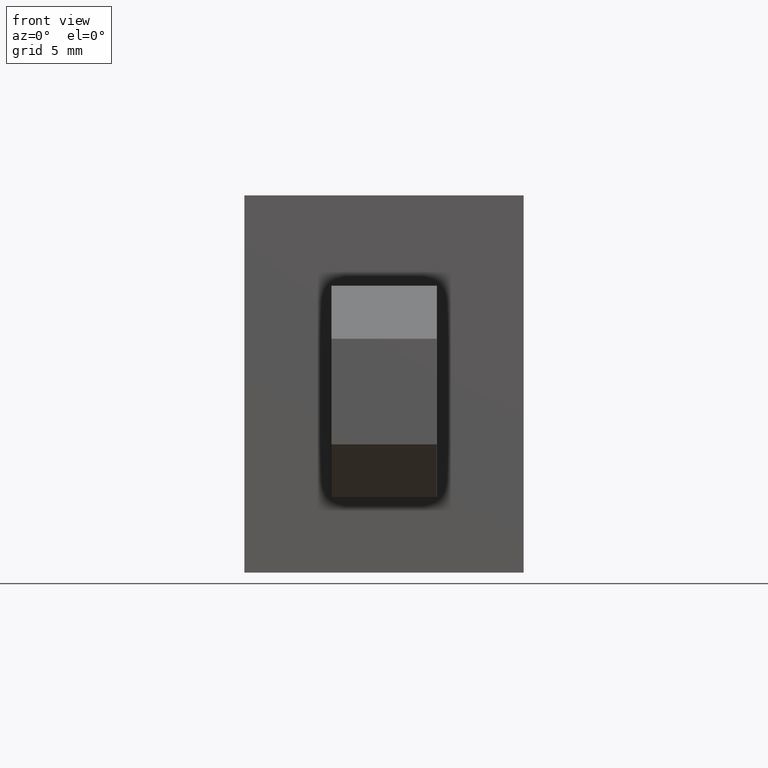
[diagram: clean part render]
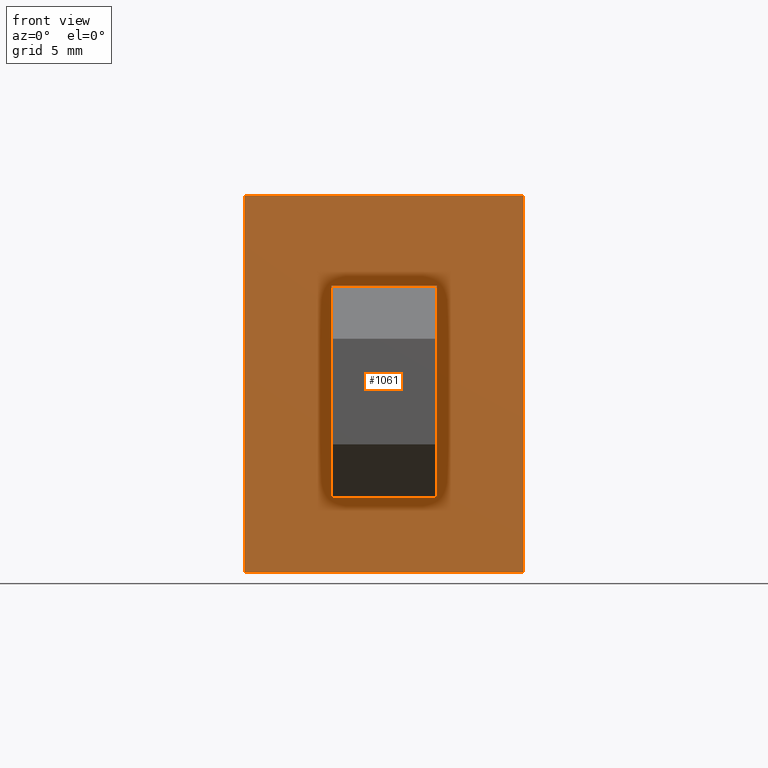
[diagram: same view with one face highlighted and labeled with its STEP entity id]
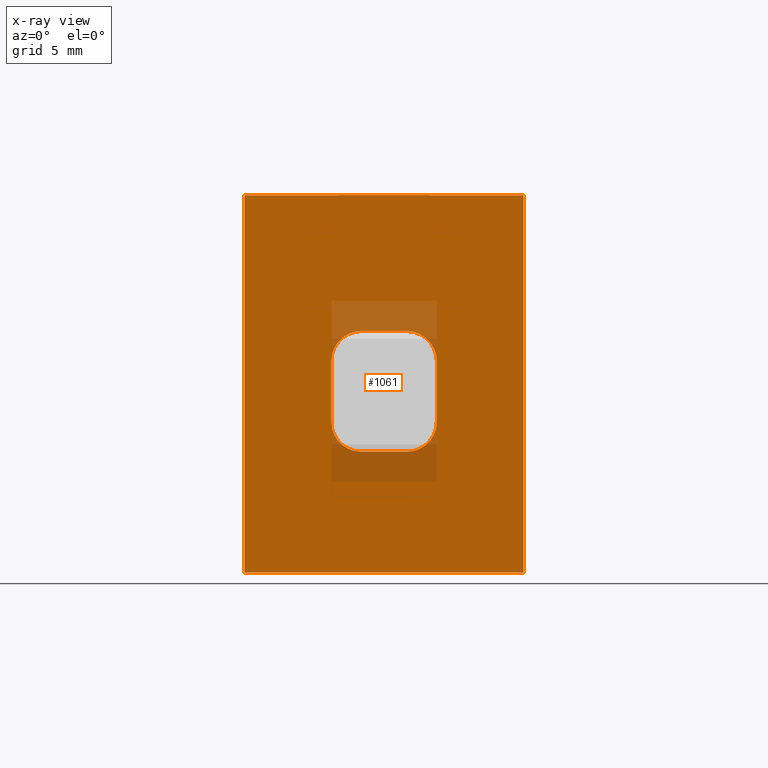
[diagram: x-ray of the same camera — body ghosted, the highlighted face saturated]
A machine part, front view. The second image highlights one B-rep face of the part: STEP entity #1061.
The next image is the same camera in x-ray: the body ghosted, the highlighted face saturated — about 8% of this face is hidden behind the body in this view.
In plain terms, the highlighted planar face has unit normal (0, 1, 0).
Its self-contained STEP definition (entity closure, byte-faithful):
#43=LINE('',#1514,#163);
#51=LINE('',#1531,#171);
#54=LINE('',#1535,#174);
#61=LINE('',#1557,#181);
#124=LINE('',#1701,#244);
#127=LINE('',#1712,#247);
#133=LINE('',#1727,#253);
#134=LINE('',#1729,#254);
#163=VECTOR('',#1229,25.);
#171=VECTOR('',#1239,25.);
#174=VECTOR('',#1244,18.5);
#181=VECTOR('',#1261,18.5);
#244=VECTOR('',#1398,3.);
#247=VECTOR('',#1409,4.);
#253=VECTOR('',#1425,4.);
#254=VECTOR('',#1428,3.);
#295=PLANE('',#1145);
#313=FACE_BOUND('',#431,.T.);
#367=FACE_OUTER_BOUND('',#430,.T.);
#430=EDGE_LOOP('',(#979,#980,#981,#982));
#431=EDGE_LOOP('',(#983,#984,#985,#986,#987,#988,#989,#990));
#453=CIRCLE('',#1132,2.);
#454=CIRCLE('',#1134,2.);
#456=CIRCLE('',#1138,2.);
#458=CIRCLE('',#1143,2.);
#485=VERTEX_POINT('',#1512);
#486=VERTEX_POINT('',#1513);
#493=VERTEX_POINT('',#1528);
#494=VERTEX_POINT('',#1530);
#545=VERTEX_POINT('',#1689);
#546=VERTEX_POINT('',#1691);
#547=VERTEX_POINT('',#1695);
#548=VERTEX_POINT('',#1696);
#551=VERTEX_POINT('',#1706);
#552=VERTEX_POINT('',#1708);
#555=VERTEX_POINT('',#1721);
#556=VERTEX_POINT('',#1723);
#595=EDGE_CURVE('',#485,#486,#43,.T.);
#603=EDGE_CURVE('',#494,#493,#51,.T.);
#606=EDGE_CURVE('',#494,#485,#54,.T.);
#617=EDGE_CURVE('',#493,#486,#61,.T.);
#684=EDGE_CURVE('',#545,#546,#453,.T.);
#685=EDGE_CURVE('',#547,#548,#454,.T.);
#688=EDGE_CURVE('',#546,#548,#124,.T.);
#691=EDGE_CURVE('',#552,#551,#456,.T.);
#693=EDGE_CURVE('',#551,#545,#127,.T.);
#699=EDGE_CURVE('',#556,#555,#458,.T.);
#701=EDGE_CURVE('',#556,#547,#133,.T.);
#702=EDGE_CURVE('',#552,#555,#134,.T.);
#979=ORIENTED_EDGE('',*,*,#606,.F.);
#980=ORIENTED_EDGE('',*,*,#603,.T.);
#981=ORIENTED_EDGE('',*,*,#617,.T.);
#982=ORIENTED_EDGE('',*,*,#595,.F.);
#983=ORIENTED_EDGE('',*,*,#701,.F.);
#984=ORIENTED_EDGE('',*,*,#699,.T.);
#985=ORIENTED_EDGE('',*,*,#702,.F.);
#986=ORIENTED_EDGE('',*,*,#691,.T.);
#987=ORIENTED_EDGE('',*,*,#693,.T.);
#988=ORIENTED_EDGE('',*,*,#684,.T.);
#989=ORIENTED_EDGE('',*,*,#688,.T.);
#990=ORIENTED_EDGE('',*,*,#685,.F.);
#1061=ADVANCED_FACE('',(#367,#313),#295,.F.);
#1132=AXIS2_PLACEMENT_3D('',#1693,#1388,#1389);
#1134=AXIS2_PLACEMENT_3D('',#1697,#1392,#1393);
#1138=AXIS2_PLACEMENT_3D('',#1709,#1404,#1405);
#1143=AXIS2_PLACEMENT_3D('',#1724,#1420,#1421);
#1145=AXIS2_PLACEMENT_3D('',#1728,#1426,#1427);
#1229=DIRECTION('',(0.,0.,-1.));
#1239=DIRECTION('',(0.,0.,-1.));
#1244=DIRECTION('',(1.,0.,0.));
#1261=DIRECTION('',(1.,0.,0.));
#1388=DIRECTION('center_axis',(0.,1.,0.));
#1389=DIRECTION('ref_axis',(1.,0.,0.));
#1392=DIRECTION('center_axis',(0.,-1.,0.));
#1393=DIRECTION('ref_axis',(-1.,0.,0.));
#1398=DIRECTION('',(-1.,0.,0.));
#1404=DIRECTION('center_axis',(0.,1.,0.));
#1405=DIRECTION('ref_axis',(0.,0.,1.));
#1409=DIRECTION('',(0.,0.,-1.));
#1420=DIRECTION('center_axis',(0.,1.,0.));
#1421=DIRECTION('ref_axis',(-1.,0.,0.));
#1425=DIRECTION('',(0.,0.,-1.));
#1426=DIRECTION('center_axis',(0.,1.,0.));
#1427=DIRECTION('ref_axis',(0.,0.,1.));
#1428=DIRECTION('',(-1.,0.,0.));
#1512=CARTESIAN_POINT('',(9.25,0.,9.));
#1513=CARTESIAN_POINT('',(9.25,0.,-16.));
#1514=CARTESIAN_POINT('',(9.25,0.,9.));
#1528=CARTESIAN_POINT('',(-9.25,0.,-16.));
#1530=CARTESIAN_POINT('',(-9.25,0.,9.));
#1531=CARTESIAN_POINT('',(-9.25,0.,9.));
#1535=CARTESIAN_POINT('',(-9.25,0.,9.));
#1557=CARTESIAN_POINT('',(-9.25,0.,-16.));
#1689=CARTESIAN_POINT('',(3.5,0.,-6.));
#1691=CARTESIAN_POINT('',(1.5,0.,-8.));
#1693=CARTESIAN_POINT('Origin',(1.5,0.,-6.));
#1695=CARTESIAN_POINT('',(-3.5,0.,-6.));
#1696=CARTESIAN_POINT('',(-1.5,0.,-8.));
#1697=CARTESIAN_POINT('Origin',(-1.5,0.,-6.));
#1701=CARTESIAN_POINT('',(1.5,0.,-8.));
#1706=CARTESIAN_POINT('',(3.5,0.,-2.));
#1708=CARTESIAN_POINT('',(1.5,0.,0.));
#1709=CARTESIAN_POINT('Origin',(1.5,0.,-2.));
#1712=CARTESIAN_POINT('',(3.5,0.,-2.));
#1721=CARTESIAN_POINT('',(-1.5,0.,0.));
#1723=CARTESIAN_POINT('',(-3.5,0.,-2.));
#1724=CARTESIAN_POINT('Origin',(-1.5,0.,-2.));
#1727=CARTESIAN_POINT('',(-3.5,0.,-2.));
#1728=CARTESIAN_POINT('Origin',(-9.25099999997474,0.,9.00099999997474));
#1729=CARTESIAN_POINT('',(1.5,0.,0.));